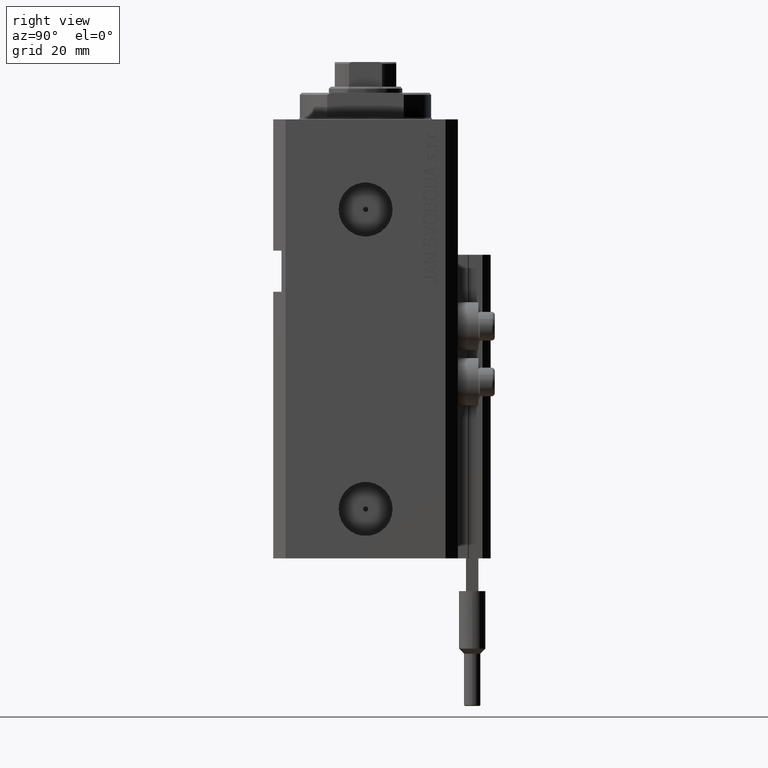
[diagram: clean part render]
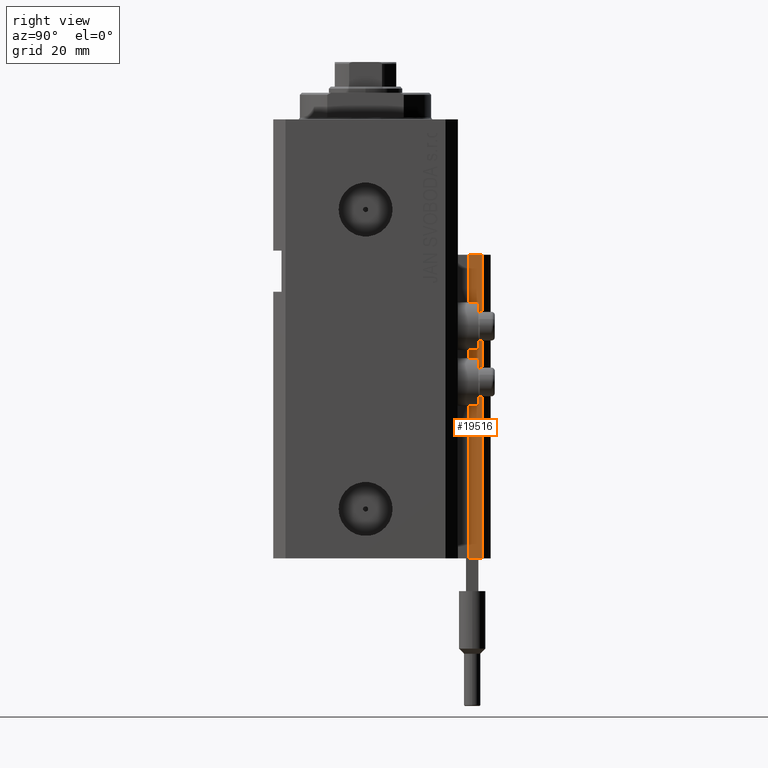
[diagram: same view with one face highlighted and labeled with its STEP entity id]
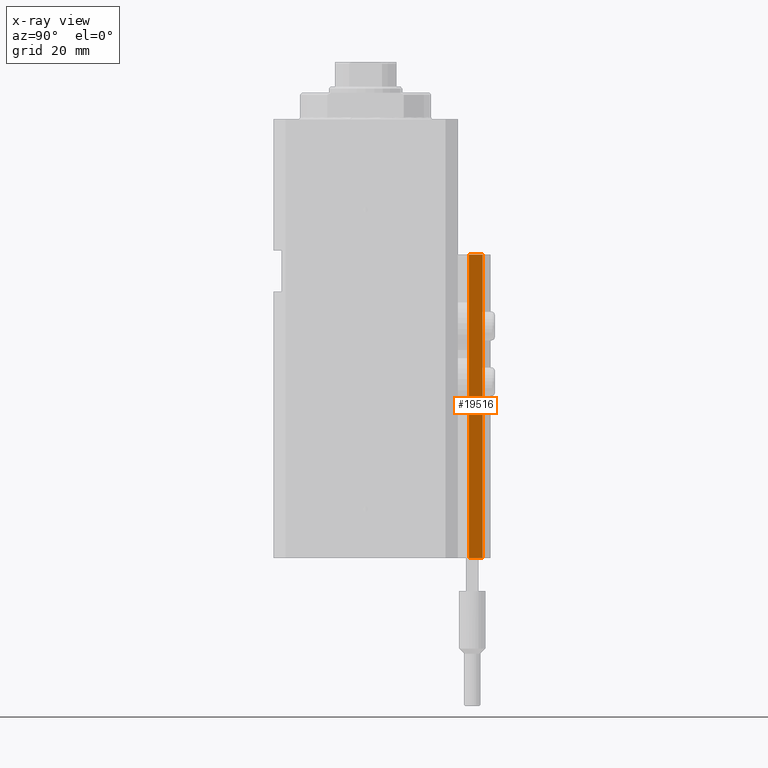
[diagram: x-ray of the same camera — body ghosted, the highlighted face saturated]
A machine part, right view. The second image highlights one B-rep face of the part: STEP entity #19516.
The next image is the same camera in x-ray: the body ghosted, the highlighted face saturated — about 0% of this face is hidden behind the body in this view.
In plain terms, the highlighted planar face has unit normal (1, 0, 0).
Its self-contained STEP definition (entity closure, byte-faithful):
#134 = CARTESIAN_POINT ( 'NONE',  ( 12.00000000000000178, 28.49999999999950973, -33.00000000000000000 ) ) ;
#3895 = VERTEX_POINT ( 'NONE', #30204 ) ;
#6591 = DIRECTION ( 'NONE',  ( 0.000000000000000000, 0.000000000000000000, 1.000000000000000000 ) ) ;
#8459 = FACE_OUTER_BOUND ( 'NONE', #12439, .T. ) ;
#9347 = VERTEX_POINT ( 'NONE', #134 ) ;
#11695 = PLANE ( 'NONE',  #29341 ) ;
#11941 = CARTESIAN_POINT ( 'NONE',  ( 12.00000000000000178, 25.19999999999951257, -107.0000000000000000 ) ) ;
#12439 = EDGE_LOOP ( 'NONE', ( #32508, #13900, #34563, #45015 ) ) ;
#13900 = ORIENTED_EDGE ( 'NONE', *, *, #34495, .F. ) ;
#17054 = LINE ( 'NONE', #23767, #22176 ) ;
#17677 = LINE ( 'NONE', #32820, #19032 ) ;
#17739 = VECTOR ( 'NONE', #35044, 1000.000000000000000 ) ;
#19032 = VECTOR ( 'NONE', #21646, 1000.000000000000000 ) ;
#19416 = CARTESIAN_POINT ( 'NONE',  ( 12.00000000000000355, 25.19999999999951257, -107.0000000000000000 ) ) ;
#19516 = ADVANCED_FACE ( 'NONE', ( #8459 ), #11695, .T. ) ;
#19910 = CARTESIAN_POINT ( 'NONE',  ( 12.00000000000000178, 25.19999999999951257, -107.0000000000000000 ) ) ;
#21646 = DIRECTION ( 'NONE',  ( 0.000000000000000000, 1.000000000000000000, 0.000000000000000000 ) ) ;
#22176 = VECTOR ( 'NONE', #27735, 1000.000000000000000 ) ;
#22204 = VERTEX_POINT ( 'NONE', #40288 ) ;
#22772 = EDGE_CURVE ( 'NONE', #3895, #9347, #17054, .T. ) ;
#23377 = DIRECTION ( 'NONE',  ( 0.000000000000000000, 0.000000000000000000, -1.000000000000000000 ) ) ;
#23532 = EDGE_CURVE ( 'NONE', #22204, #9347, #17677, .T. ) ;
#23767 = CARTESIAN_POINT ( 'NONE',  ( 12.00000000000000178, 28.49999999999950973, -107.0000000000000000 ) ) ;
#26950 = VERTEX_POINT ( 'NONE', #34138 ) ;
#27094 = DIRECTION ( 'NONE',  ( 1.000000000000000000, 0.000000000000000000, 0.000000000000000000 ) ) ;
#27735 = DIRECTION ( 'NONE',  ( 0.000000000000000000, 0.000000000000000000, 1.000000000000000000 ) ) ;
#29341 = AXIS2_PLACEMENT_3D ( 'NONE', #11941, #27094, #23377 ) ;
#30204 = CARTESIAN_POINT ( 'NONE',  ( 12.00000000000000178, 28.49999999999950973, -107.0000000000000000 ) ) ;
#31566 = LINE ( 'NONE', #19910, #17739 ) ;
#32508 = ORIENTED_EDGE ( 'NONE', *, *, #23532, .F. ) ;
#32820 = CARTESIAN_POINT ( 'NONE',  ( 12.00000000000000178, 25.19999999999951257, -33.00000000000000000 ) ) ;
#32907 = LINE ( 'NONE', #19416, #35237 ) ;
#34138 = CARTESIAN_POINT ( 'NONE',  ( 12.00000000000000355, 25.19999999999951257, -107.0000000000000000 ) ) ;
#34495 = EDGE_CURVE ( 'NONE', #26950, #22204, #32907, .T. ) ;
#34563 = ORIENTED_EDGE ( 'NONE', *, *, #47465, .T. ) ;
#35044 = DIRECTION ( 'NONE',  ( 0.000000000000000000, 1.000000000000000000, 0.000000000000000000 ) ) ;
#35237 = VECTOR ( 'NONE', #6591, 1000.000000000000000 ) ;
#40288 = CARTESIAN_POINT ( 'NONE',  ( 12.00000000000000355, 25.19999999999951257, -33.00000000000000000 ) ) ;
#45015 = ORIENTED_EDGE ( 'NONE', *, *, #22772, .T. ) ;
#47465 = EDGE_CURVE ( 'NONE', #26950, #3895, #31566, .T. ) ;